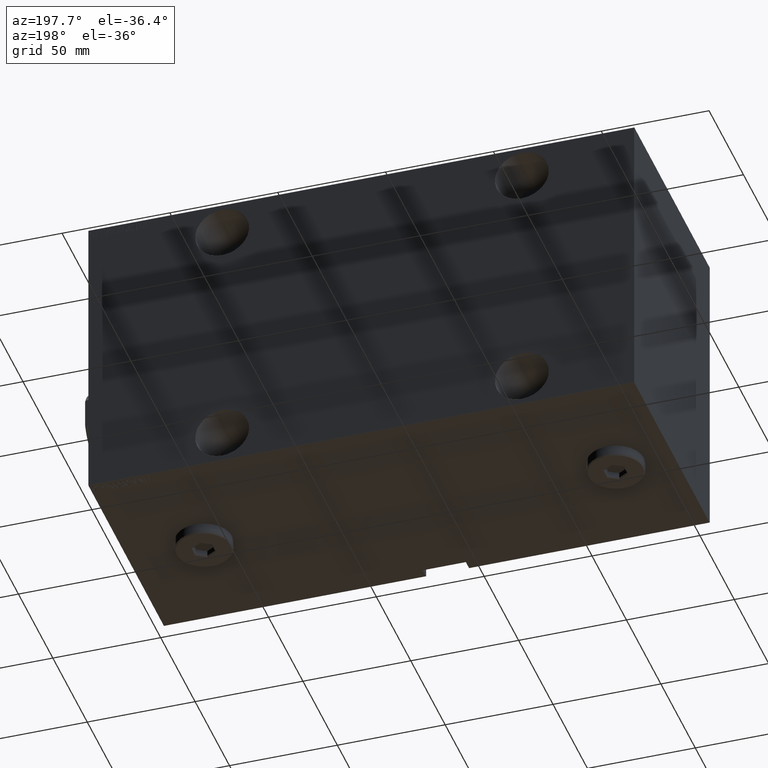
[diagram: clean part render]
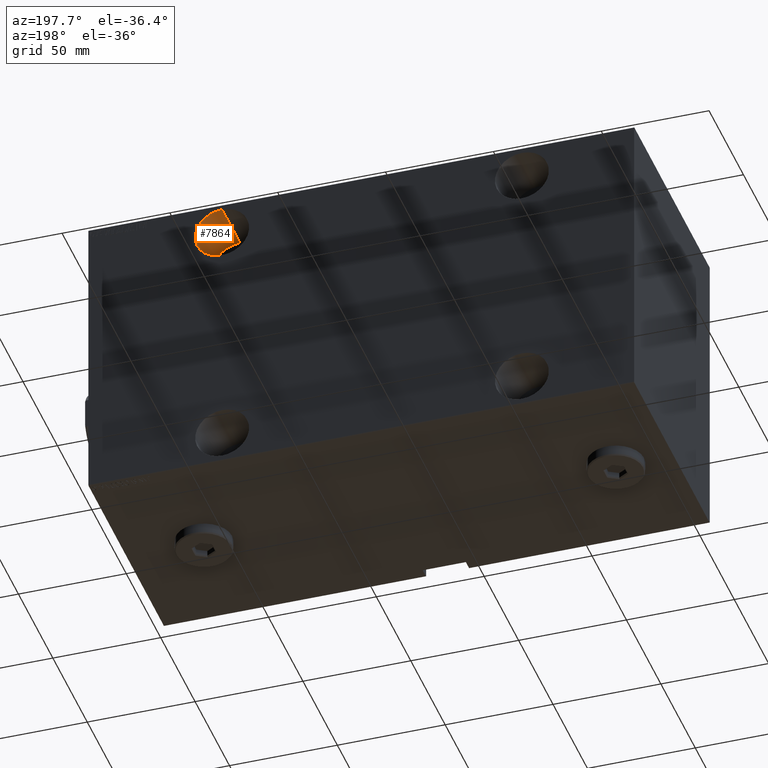
[diagram: same view with one face highlighted and labeled with its STEP entity id]
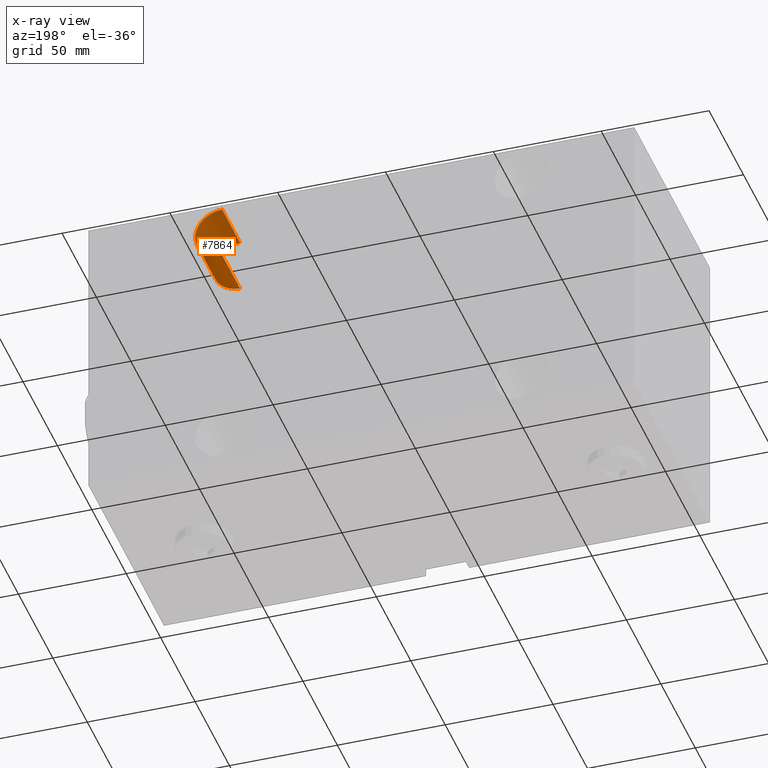
[diagram: x-ray of the same camera — body ghosted, the highlighted face saturated]
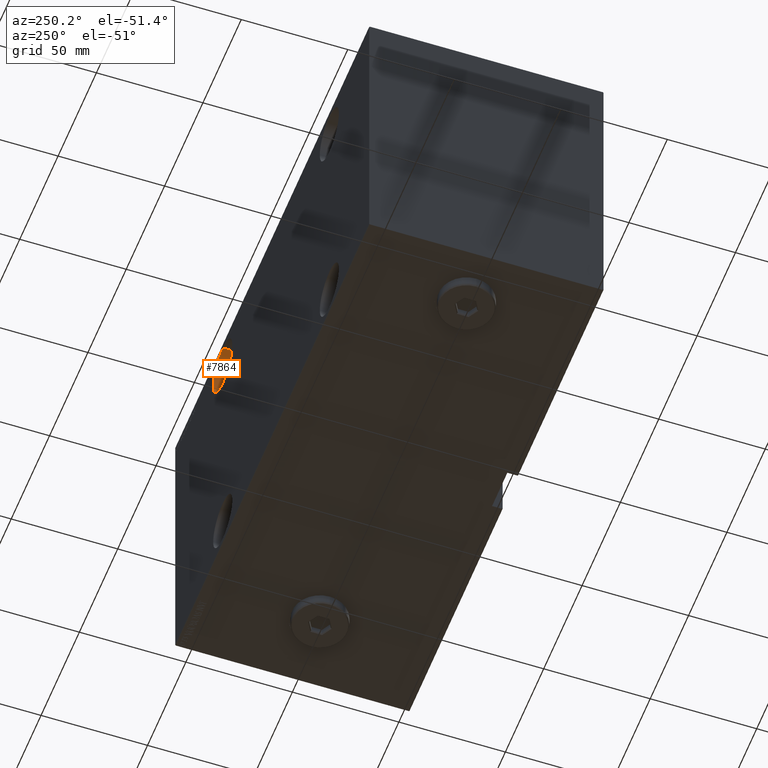
[diagram: same view with one face highlighted and labeled with its STEP entity id]
A machine part, auxiliary view. The second image highlights one B-rep face of the part: STEP entity #7864.
The next image is the same camera in x-ray: the body ghosted, the highlighted face saturated — about 0% of this face is hidden behind the body in this view.
A second angle (auxiliary view) of the same face is appended — the face is thin or edge-on in the first view.
In plain terms, the highlighted cylindrical surface (edge-blend (fillet) strip) has radius 12.5 mm, axis along (0, 1, -0).
Its self-contained STEP definition (entity closure, byte-faithful):
#1416 = AXIS2_PLACEMENT_3D ( 'NONE', #30066, #36998, #9869 ) ;
#3501 = CARTESIAN_POINT ( 'NONE',  ( 61.99999999999999289, -54.99999999999999289, 42.49999999999999289 ) ) ;
#4332 = VECTOR ( 'NONE', #37110, 1000.000000000000000 ) ;
#4859 = DIRECTION ( 'NONE',  ( -0.000000000000000000, -1.000000000000000000, -0.000000000000000000 ) ) ;
#5305 = FACE_OUTER_BOUND ( 'NONE', #26929, .T. ) ;
#5386 = CARTESIAN_POINT ( 'NONE',  ( 61.99999999999999289, -54.99999999999999289, 67.50000000000001421 ) ) ;
#5906 = VECTOR ( 'NONE', #23847, 1000.000000000000000 ) ;
#6184 = DIRECTION ( 'NONE',  ( 0.000000000000000000, -1.000000000000000000, 0.000000000000000000 ) ) ;
#6399 = VERTEX_POINT ( 'NONE', #5386 ) ;
#6834 = CARTESIAN_POINT ( 'NONE',  ( 61.99999999999999289, -28.99999999999999289, 42.49999999999999289 ) ) ;
#7864 = ADVANCED_FACE ( 'NONE', ( #5305 ), #32447, .F. ) ;
#9869 = DIRECTION ( 'NONE',  ( 0.000000000000000000, 0.000000000000000000, -1.000000000000000000 ) ) ;
#10771 = VERTEX_POINT ( 'NONE', #3501 ) ;
#13146 = CARTESIAN_POINT ( 'NONE',  ( 61.99999999999999289, -54.99999999999999289, 55.00000000000000711 ) ) ;
#13465 = AXIS2_PLACEMENT_3D ( 'NONE', #13146, #6184, #30630 ) ;
#13585 = CARTESIAN_POINT ( 'NONE',  ( 61.99999999999999289, -28.99999999999999289, 42.49999999999999289 ) ) ;
#14005 = ORIENTED_EDGE ( 'NONE', *, *, #43436, .F. ) ;
#15189 = DIRECTION ( 'NONE',  ( 0.000000000000000000, 0.000000000000000000, -1.000000000000000000 ) ) ;
#16544 = VERTEX_POINT ( 'NONE', #39259 ) ;
#17734 = EDGE_CURVE ( 'NONE', #16544, #6399, #30567, .T. ) ;
#23847 = DIRECTION ( 'NONE',  ( -0.000000000000000000, -1.000000000000000000, -0.000000000000000000 ) ) ;
#25730 = CARTESIAN_POINT ( 'NONE',  ( 61.99999999999999289, -28.99999999999999289, 55.00000000000000711 ) ) ;
#26929 = EDGE_LOOP ( 'NONE', ( #38905, #41140, #27920, #14005 ) ) ;
#27920 = ORIENTED_EDGE ( 'NONE', *, *, #37915, .T. ) ;
#29216 = CIRCLE ( 'NONE', #13465, 12.50000000000001066 ) ;
#30066 = CARTESIAN_POINT ( 'NONE',  ( 61.99999999999999289, -28.99999999999999289, 55.00000000000000711 ) ) ;
#30567 = LINE ( 'NONE', #31006, #5906 ) ;
#30630 = DIRECTION ( 'NONE',  ( 0.000000000000000000, 0.000000000000000000, -1.000000000000000000 ) ) ;
#31006 = CARTESIAN_POINT ( 'NONE',  ( 61.99999999999999289, -28.99999999999999289, 67.50000000000001421 ) ) ;
#32447 = CYLINDRICAL_SURFACE ( 'NONE', #38492, 12.50000000000001066 ) ;
#36998 = DIRECTION ( 'NONE',  ( 0.000000000000000000, -1.000000000000000000, 0.000000000000000000 ) ) ;
#37110 = DIRECTION ( 'NONE',  ( -0.000000000000000000, -1.000000000000000000, -0.000000000000000000 ) ) ;
#37915 = EDGE_CURVE ( 'NONE', #6399, #10771, #29216, .T. ) ;
#38492 = AXIS2_PLACEMENT_3D ( 'NONE', #25730, #4859, #15189 ) ;
#38905 = ORIENTED_EDGE ( 'NONE', *, *, #41867, .F. ) ;
#39259 = CARTESIAN_POINT ( 'NONE',  ( 61.99999999999999289, -28.99999999999999289, 67.50000000000001421 ) ) ;
#41140 = ORIENTED_EDGE ( 'NONE', *, *, #17734, .T. ) ;
#41867 = EDGE_CURVE ( 'NONE', #16544, #42336, #42235, .T. ) ;
#42235 = CIRCLE ( 'NONE', #1416, 12.50000000000001066 ) ;
#42336 = VERTEX_POINT ( 'NONE', #13585 ) ;
#43436 = EDGE_CURVE ( 'NONE', #42336, #10771, #44294, .T. ) ;
#44294 = LINE ( 'NONE', #6834, #4332 ) ;